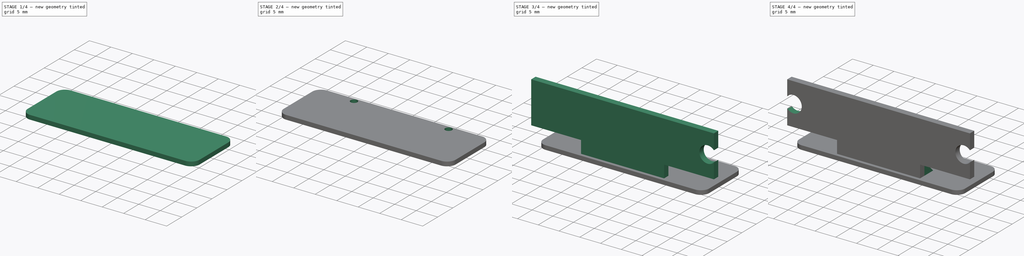
[diagram: build sequence overview — one tinted view per stage of 4, left to right]
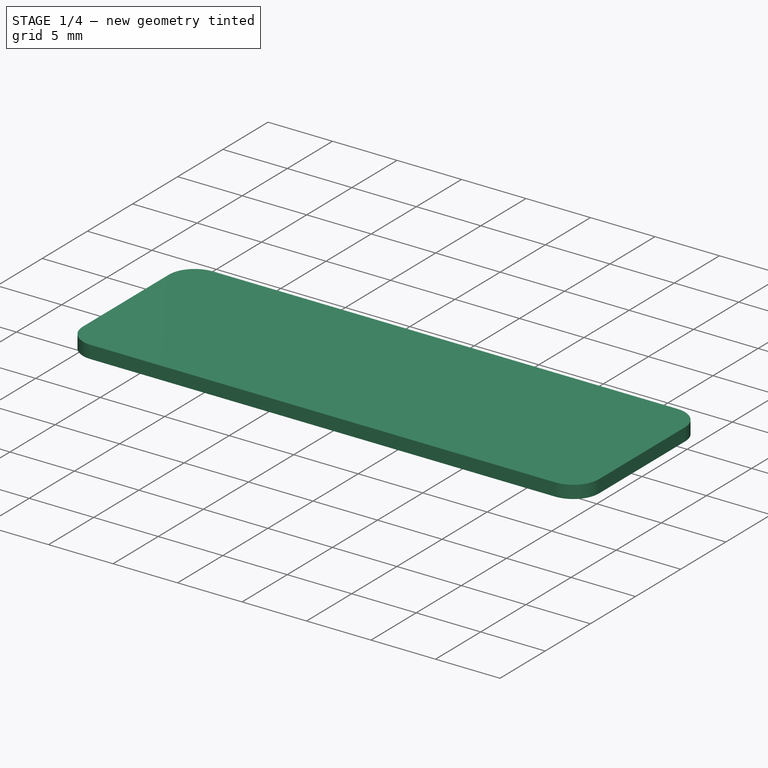
[diagram: stage 1 of 4 — iso view after this stage's code; geometry added in this stage tinted green]
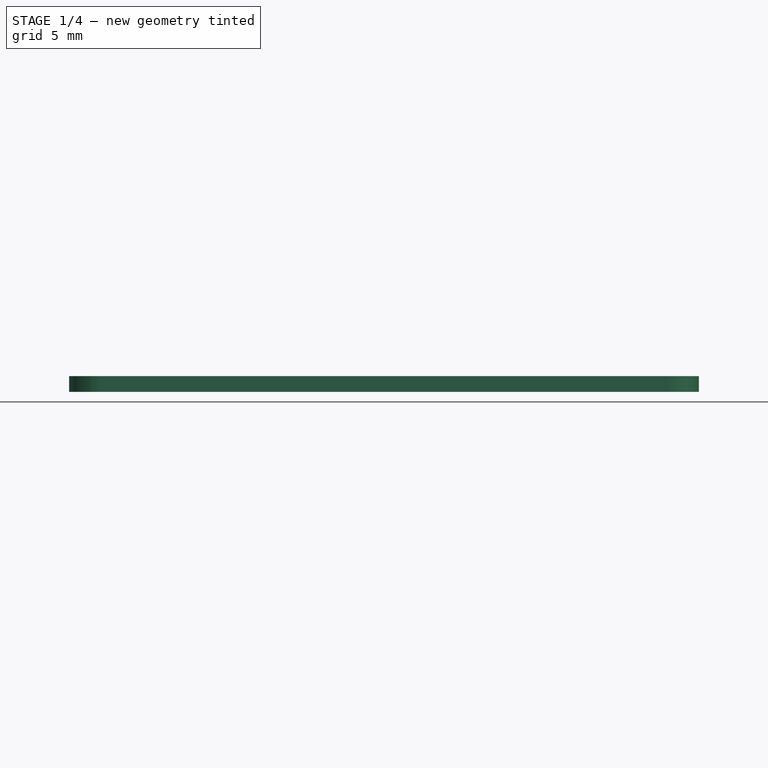
[diagram: stage 1 of 4 — front view after this stage's code; geometry added in this stage tinted green]
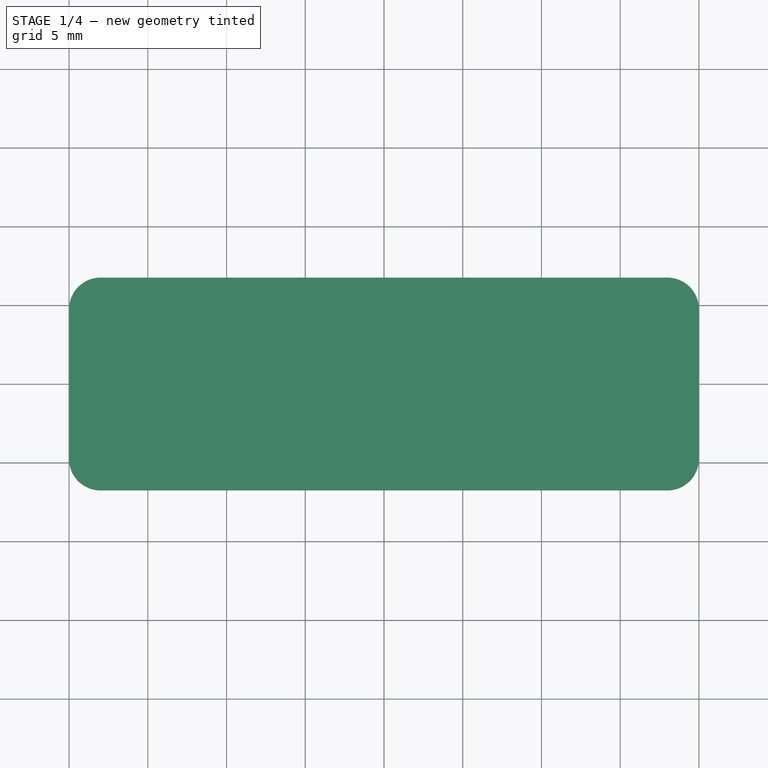
[diagram: stage 1 of 4 — top view after this stage's code; geometry added in this stage tinted green]
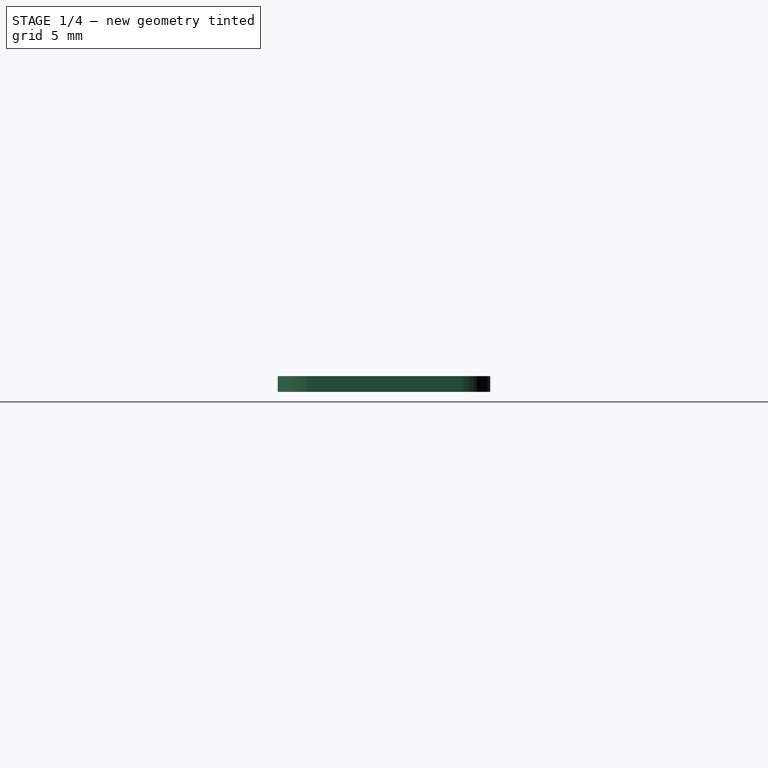
[diagram: stage 1 of 4 — right view after this stage's code; geometry added in this stage tinted green]
FCSTD DOCUMENT  (FreeCAD 0.17R13519 (Git))
Label: ChePai-Qian-jwei-1.0
License: All rights reserved
LicenseURL: http://en.wikipedia.org/wiki/All_rights_reserved
objects: Sketcher::SketchObject×6, PartDesign::Pad×4, PartDesign::Pocket×2, PartDesign::Mirrored×2, PartDesign::Fillet×1, PartDesign::Body×1
note: 22 computed .brp shape members not serialized (recipe doc carries the construction recipe); baked Part::Feature solids carry a one-line shape summary decoded from their .brp

FEATURE [Sketcher::SketchObject] Sketch001
  MapMode = 5
  Support = -> [XY_Plane]
  sketch-geometry (4):
    g0: LineSegment StartX=-20 StartY=6.75 StartZ=0 EndX=20 EndY=6.75 EndZ=0
    g1: LineSegment StartX=20 StartY=6.75 StartZ=0 EndX=20 EndY=-6.75 EndZ=0
    g2: LineSegment StartX=20 StartY=-6.75 StartZ=0 EndX=-20 EndY=-6.75 EndZ=0
    g3: LineSegment StartX=-20 StartY=-6.75 StartZ=0 EndX=-20 EndY=6.75 EndZ=0
  constraints (12):
    c: Coincident(g0,g1)
    c: Coincident(g1,g2)
    c: Coincident(g2,g3)
    c: Coincident(g3,g0)
    c: Horizontal(g0)
    c: Horizontal(g2)
    c: Vertical(g1)
    c: Vertical(g3)
    c: DistanceY(g3,g3) = 13.5
    c: DistanceX(g0,g0) = 40
    c: DistanceX(g-2,g0) = -20
    c: DistanceY(g-1,g0) = 6.75
FEATURE [PartDesign::Pad] Pad
  Length = 1
  Length2 = 100
  Profile = -> Sketch001
  Type = 0
FEATURE [PartDesign::Fillet] Fillet
  Base = -> Pad [Edge2,Edge5,Edge8,Edge1]
  BaseFeature = -> Pad
  Radius = 2
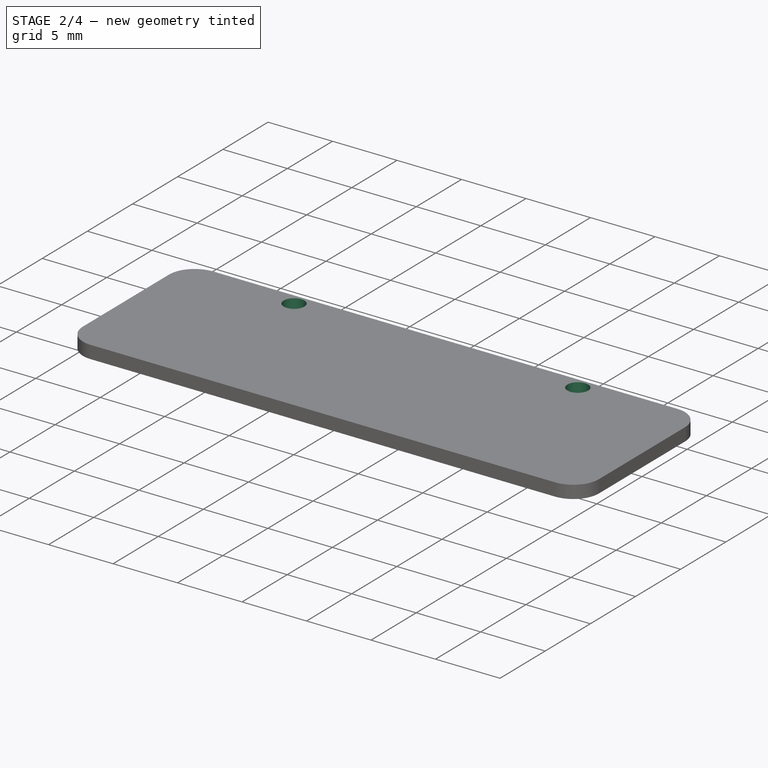
[diagram: stage 2 of 4 — iso view after this stage's code; geometry added in this stage tinted green]
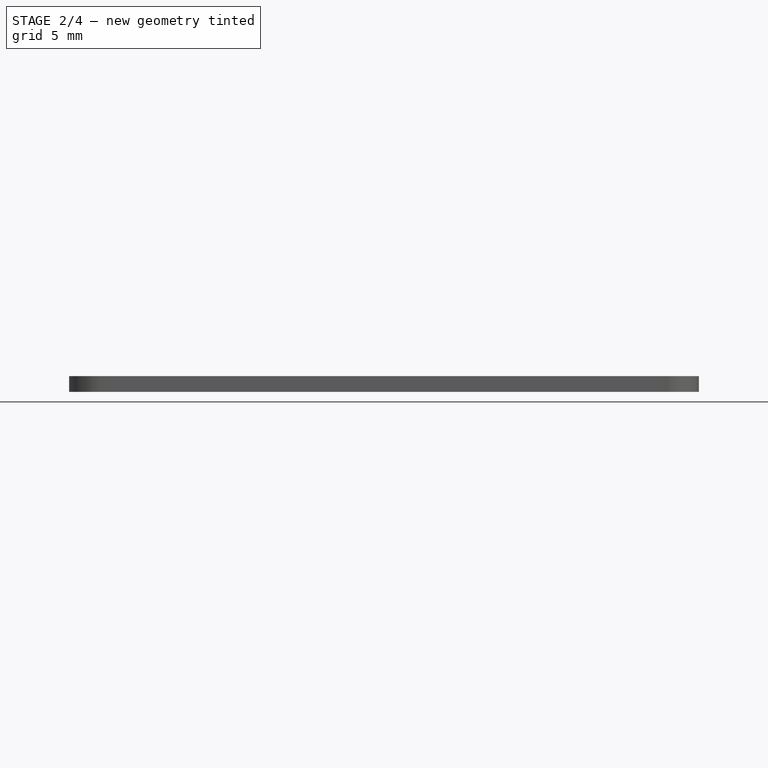
[diagram: stage 2 of 4 — front view after this stage's code; geometry added in this stage tinted green]
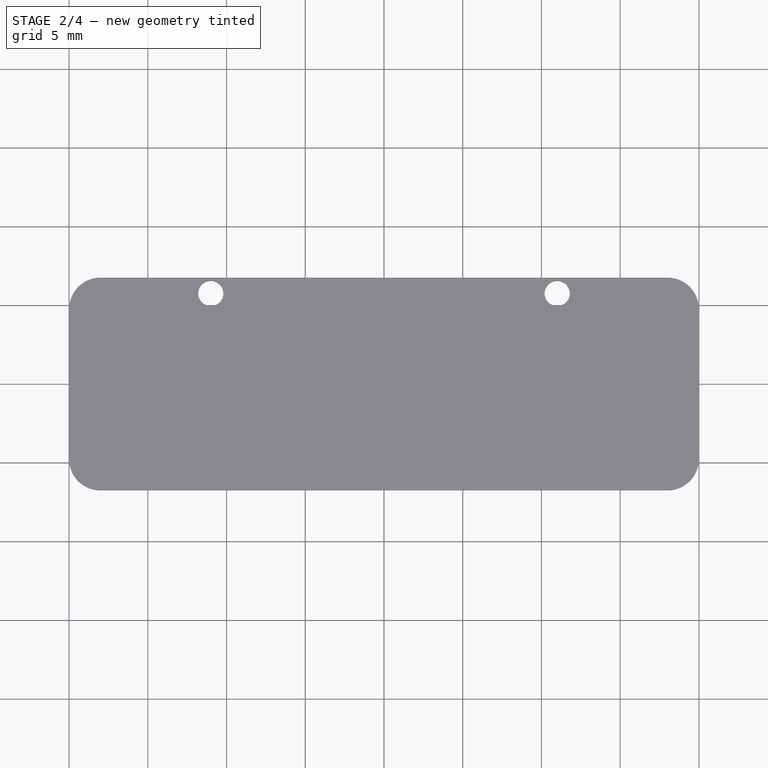
[diagram: stage 2 of 4 — top view after this stage's code; geometry added in this stage tinted green]
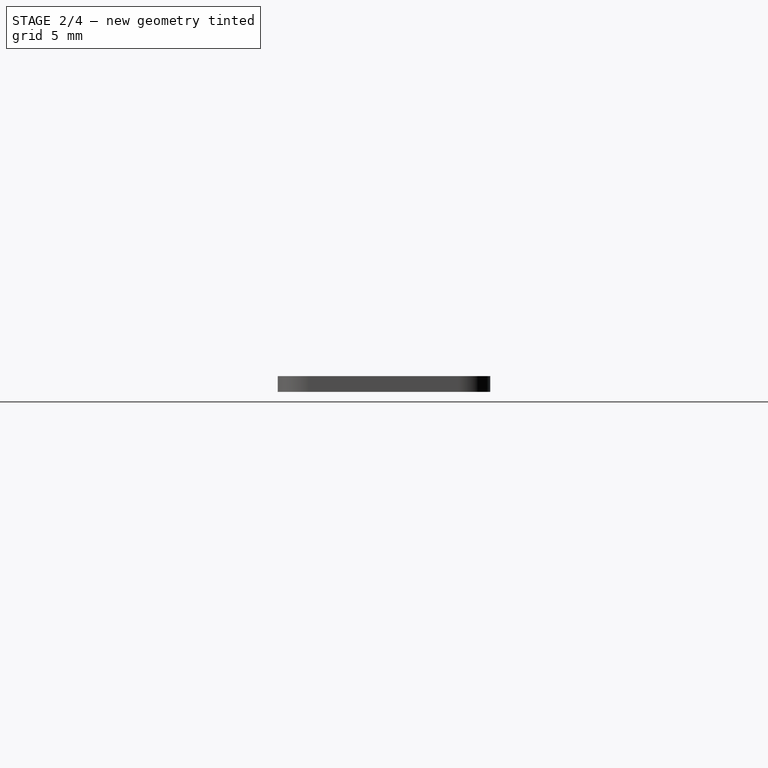
[diagram: stage 2 of 4 — right view after this stage's code; geometry added in this stage tinted green]
FEATURE [Sketcher::SketchObject] Sketch002
  ExternalGeometry = -> [Fillet]
  MapMode = 5
  Placement = pos=(0,0,1) rot=(0,0,1;0rad)
  Support = -> [Fillet]
  sketch-geometry (1):
    g0: Circle CenterX=-11 CenterY=5.75 CenterZ=0 NormalX=0 NormalY=0 NormalZ=1 AngleXU=0 Radius=0.8
  constraints (3):
    c: Radius(g0) = 0.8
    c: Distance(g0,g-3) = 1
    c: DistanceX(g-2,g0) = -11
FEATURE [PartDesign::Pocket] Pocket
  BaseFeature = -> Fillet
  Length = 5
  Length2 = 100
  Profile = -> Sketch002
  Type = 1
FEATURE [PartDesign::Mirrored] Mirrored
  BaseFeature = -> Pocket
  MirrorPlane = -> Sketch002 [V_Axis]
  Originals = -> [Pocket]
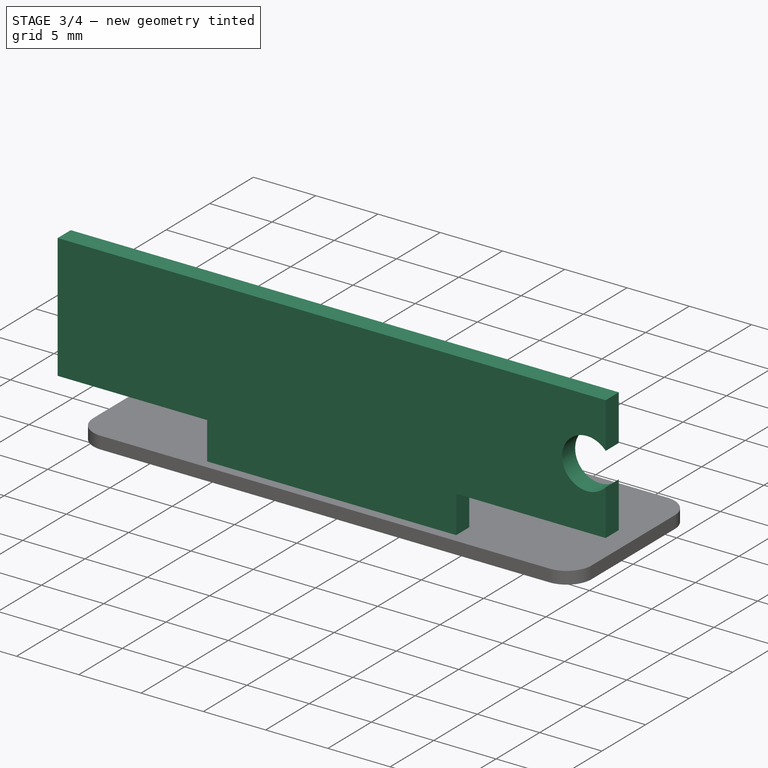
[diagram: stage 3 of 4 — iso view after this stage's code; geometry added in this stage tinted green]
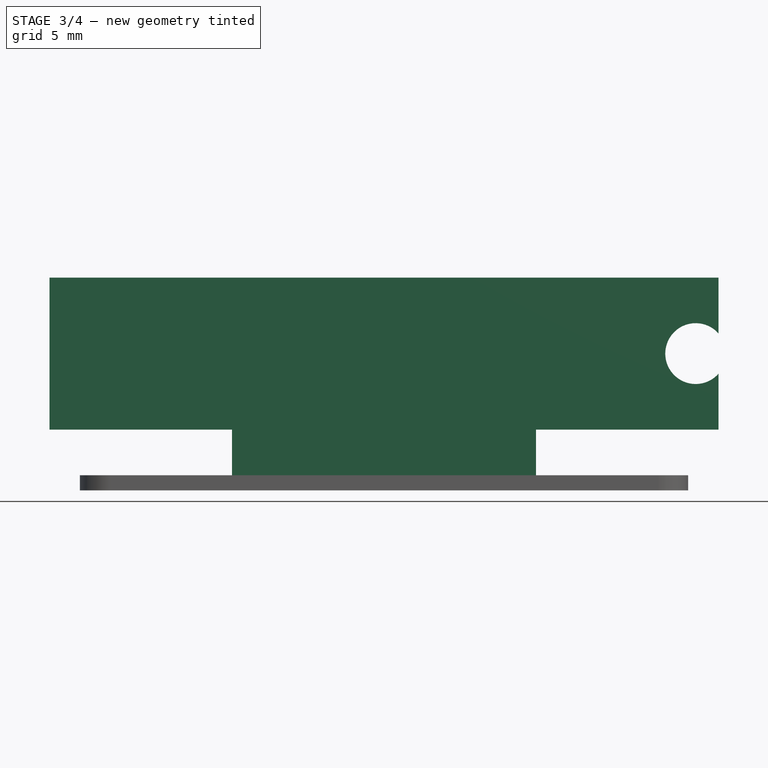
[diagram: stage 3 of 4 — front view after this stage's code; geometry added in this stage tinted green]
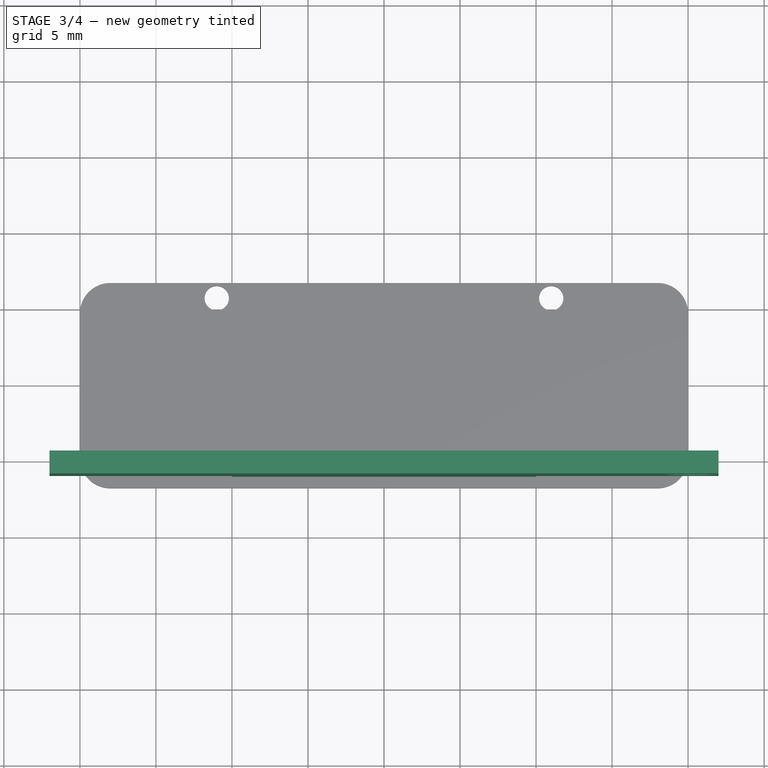
[diagram: stage 3 of 4 — top view after this stage's code; geometry added in this stage tinted green]
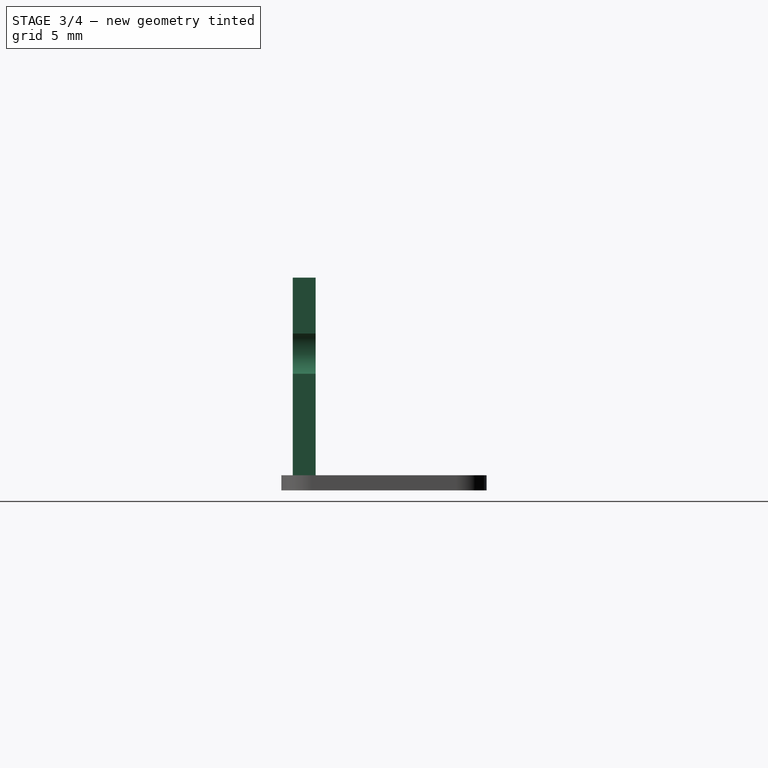
[diagram: stage 3 of 4 — right view after this stage's code; geometry added in this stage tinted green]
FEATURE [Sketcher::SketchObject] Sketch
  ExternalGeometry = -> [Mirrored]
  MapMode = 5
  Placement = pos=(0,0,1) rot=(0,0,1;0rad)
  Support = -> [Mirrored]
  sketch-geometry (4):
    g0: LineSegment StartX=-10 StartY=-4.5 StartZ=0 EndX=10 EndY=-4.5 EndZ=0
    g1: LineSegment StartX=10 StartY=-4.5 StartZ=0 EndX=10 EndY=-6 EndZ=0
    g2: LineSegment StartX=10 StartY=-6 StartZ=0 EndX=-10 EndY=-6 EndZ=0
    g3: LineSegment StartX=-10 StartY=-6 StartZ=0 EndX=-10 EndY=-4.5 EndZ=0
  constraints (12):
    c: Coincident(g0,g1)
    c: Coincident(g1,g2)
    c: Coincident(g2,g3)
    c: Coincident(g3,g0)
    c: Horizontal(g0)
    c: Horizontal(g2)
    c: Vertical(g1)
    c: Vertical(g3)
    c: DistanceY(g3,g3) = 1.5
    c: DistanceX(g0,g0) = 20
    c: DistanceX(g-2,g0) = -10
    c: Distance(g-1,g0) = 4.5
FEATURE [PartDesign::Pad] Pad001
  BaseFeature = -> Mirrored
  Length = 3
  Length2 = 100
  Profile = -> Sketch
  Type = 0
FEATURE [Sketcher::SketchObject] Sketch003
  ExternalGeometry = -> [Pad001]
  MapMode = 5
  Placement = pos=(0,0,4) rot=(0,0,1;0rad)
  Support = -> [Pad001]
  sketch-geometry (4):
    g0: LineSegment StartX=-22 StartY=-4.5 StartZ=0 EndX=22 EndY=-4.5 EndZ=0
    g1: LineSegment StartX=22 StartY=-4.5 StartZ=0 EndX=22 EndY=-6 EndZ=0
    g2: LineSegment StartX=22 StartY=-6 StartZ=0 EndX=-22 EndY=-6 EndZ=0
    g3: LineSegment StartX=-22 StartY=-6 StartZ=0 EndX=-22 EndY=-4.5 EndZ=0
  constraints (12):
    c: Coincident(g0,g1)
    c: Coincident(g1,g2)
    c: Coincident(g2,g3)
    c: Coincident(g3,g0)
    c: Horizontal(g0)
    c: Horizontal(g2)
    c: Vertical(g1)
    c: Vertical(g3)
    c: DistanceX(g0,g0) = 44
    c: DistanceY(g3,g3) = 1.5
    c: DistanceX(g-2,g0) = 22
    c: Distance(g-1,g0) = 4.5
FEATURE [PartDesign::Pad] Pad002
  BaseFeature = -> Pad001
  Length = 10
  Length2 = 100
  Profile = -> Sketch003
  Type = 0
FEATURE [Sketcher::SketchObject] Sketch005
  ExternalGeometry = -> [Pad002]
  MapMode = 5
  Placement = pos=(0,-4.5,0) rot=(0,0.707107,0.707107;3.14159rad)
  Support = -> [Pad002]
  sketch-geometry (1):
    g0: Circle CenterX=-20.5 CenterY=9 CenterZ=0 NormalX=0 NormalY=0 NormalZ=1 AngleXU=0 Radius=2
  constraints (3):
    c: Radius(g0) = 2
    c: DistanceX(g-2,g0) = -20.5
    c: Distance(g0,g-5) = 8
FEATURE [PartDesign::Pocket] Pocket001
  BaseFeature = -> Pad002
  Length = 5
  Length2 = 100
  Profile = -> Sketch005
  Type = 1
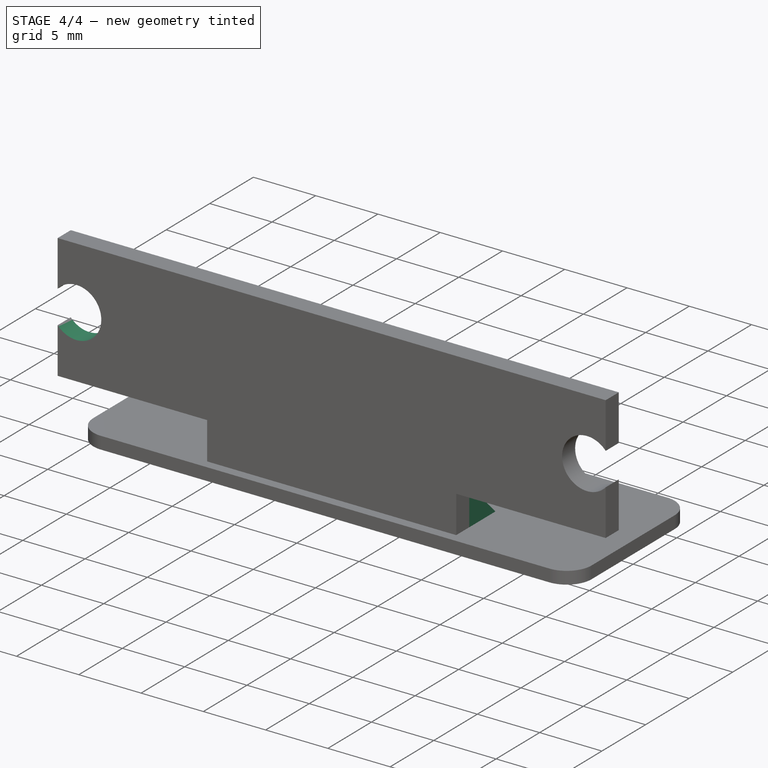
[diagram: stage 4 of 4 — iso view after this stage's code; geometry added in this stage tinted green]
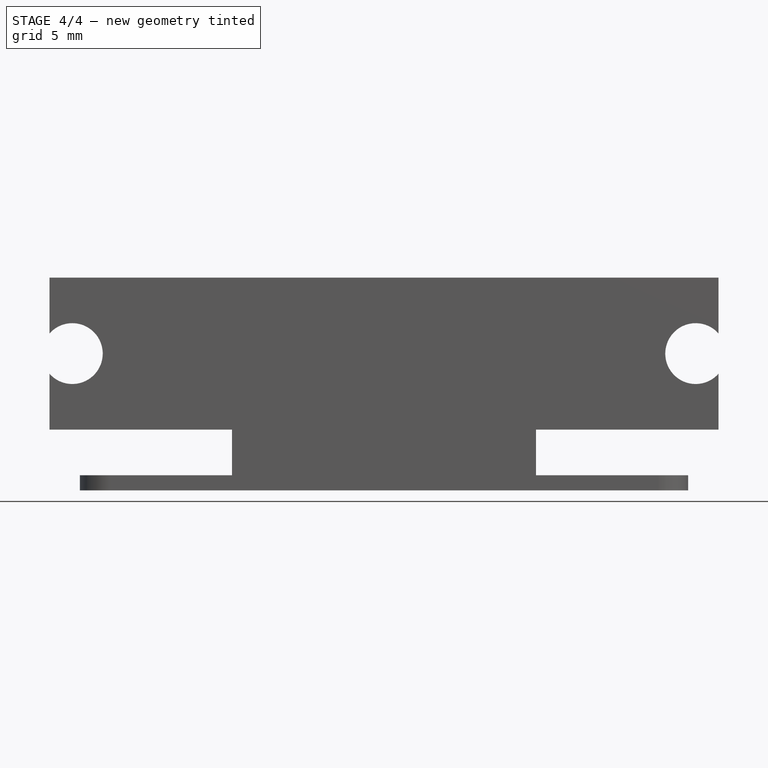
[diagram: stage 4 of 4 — front view after this stage's code; geometry added in this stage tinted green]
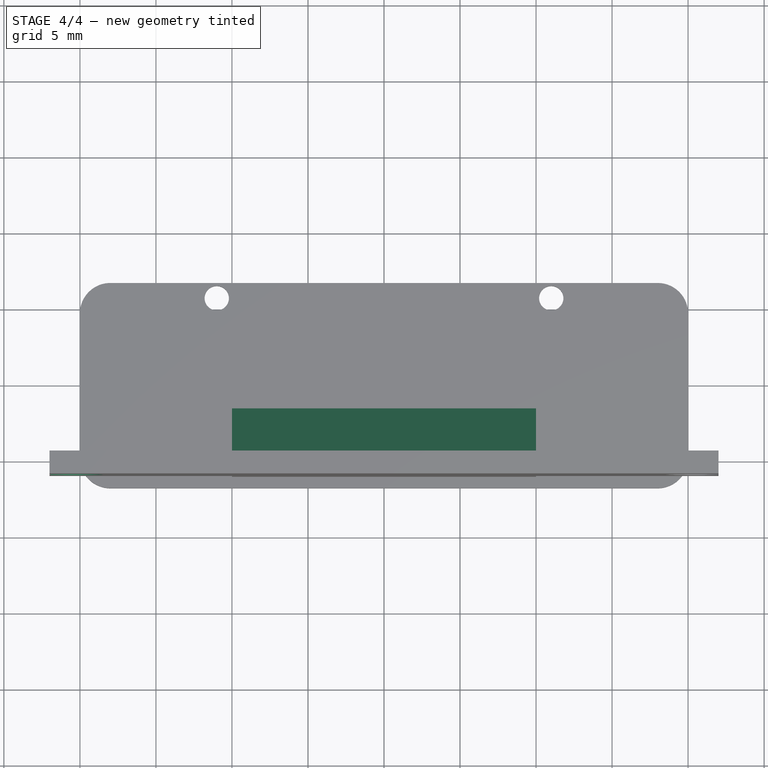
[diagram: stage 4 of 4 — top view after this stage's code; geometry added in this stage tinted green]
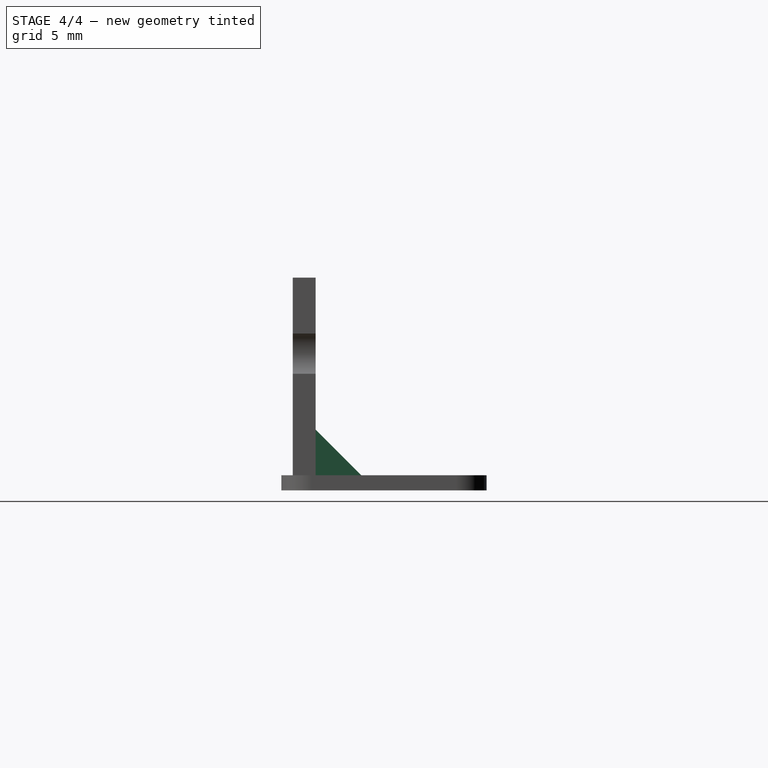
[diagram: stage 4 of 4 — right view after this stage's code; geometry added in this stage tinted green]
FEATURE [PartDesign::Mirrored] Mirrored001
  BaseFeature = -> Pocket001
  MirrorPlane = -> Sketch005 [V_Axis]
  Originals = -> [Pocket001]
FEATURE [Sketcher::SketchObject] Sketch006
  ExternalGeometry = -> [Mirrored001]
  MapMode = 5
  Placement = pos=(-10,0,0) rot=(0.57735,-0.57735,-0.57735;2.0944rad)
  Support = -> [Mirrored001]
  sketch-geometry (3):
    g0: LineSegment StartX=4.5 StartY=4 StartZ=0 EndX=1.5 EndY=1 EndZ=0
    g1: LineSegment StartX=1.5 StartY=1 StartZ=0 EndX=4.5 EndY=1 EndZ=0
    g2: LineSegment StartX=4.5 StartY=1 StartZ=0 EndX=4.5 EndY=4 EndZ=0
  constraints (8):
    c: Coincident(g0,g1)
    c: Horizontal(g1)
    c: Coincident(g1,g2)
    c: Coincident(g2,g0)
    c: Vertical(g2)
    c: Coincident(g0,g-5)
    c: Coincident(g1,g-5)
    c: DistanceX(g1,g1) = 3
FEATURE [PartDesign::Pad] Pad003
  BaseFeature = -> Mirrored001
  Length = 20
  Length2 = 100
  Profile = -> Sketch006
  Reversed = true
  Type = 0
FEATURE [PartDesign::Body] Body
  Group = -> [Sketch001,Pad,Fillet,Sketch002,Pocket,Mirrored,Sketch,Pad001,Sketch003,Pad002,Sketch005,Pocket001,Mirrored001,Sketch006,Pad003]
  Origin = -> Origin
  Tip = -> Pad003
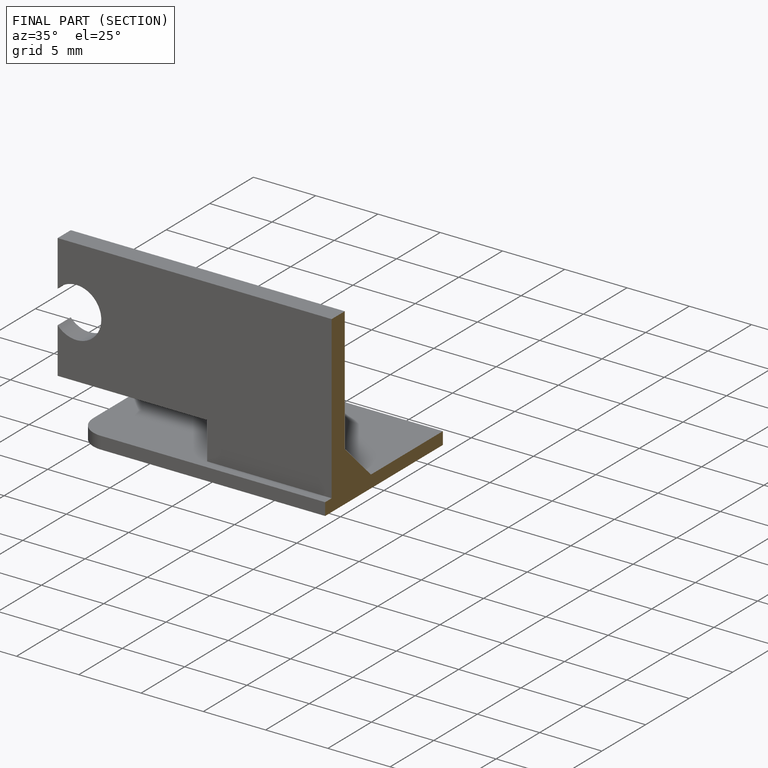
[diagram: finished part — half-section view (interior)]
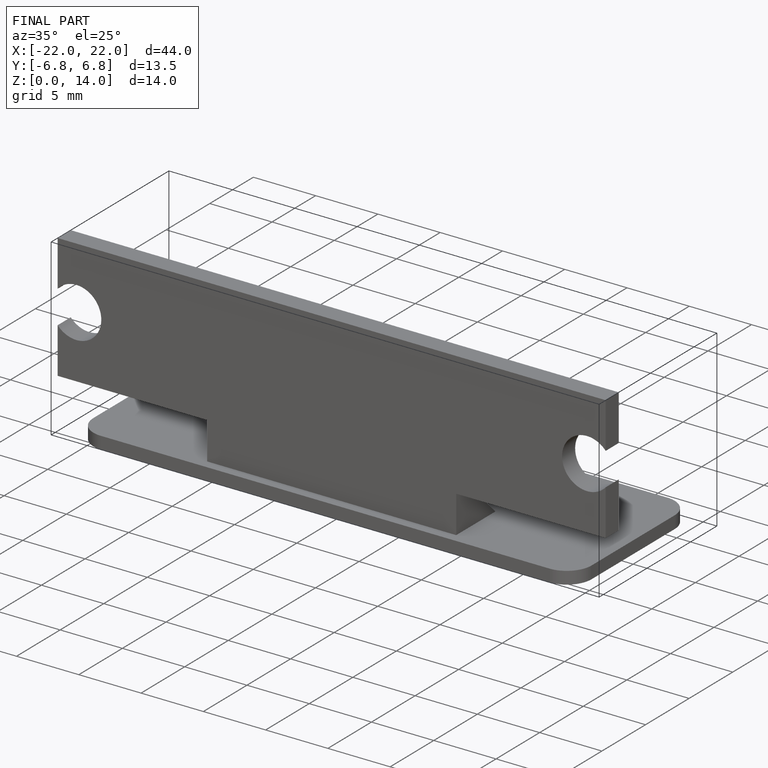
[diagram: finished part — iso view with bounding-box wireframe]
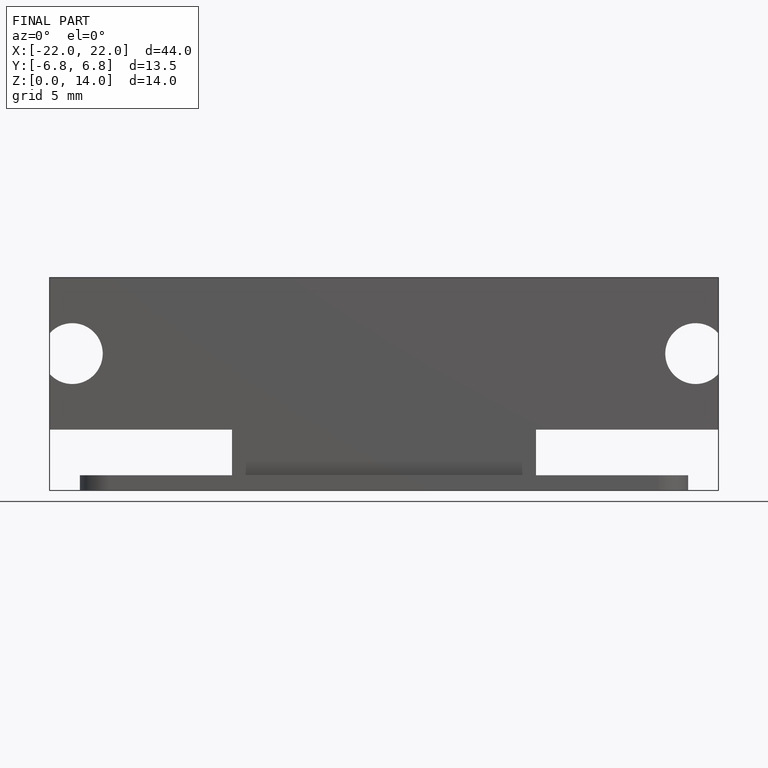
[diagram: finished part — front view with bounding-box wireframe]
